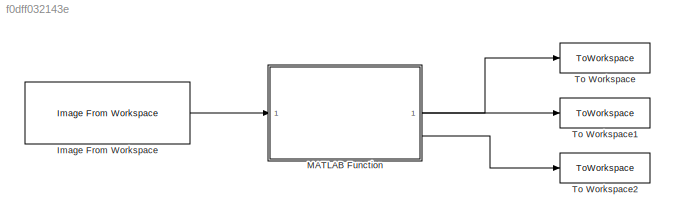
MODEL slx_f0dff032143e
KIND model
CONFIG AbsTol = auto
CONFIG EnableMultiTasking = off
CONFIG FixedStep = auto
CONFIG MaxStep = auto
CONFIG MinStep = auto
CONFIG RelTol = 1e-3
CONFIG SampleTimeConstraint = Unconstrained
CONFIG SolverName = FixedStepAuto
CONFIG StartTime = 0.0
CONFIG StopTime = 1
BLOCK [Reference] Image From Workspace  REF=visionsources/Image From Workspace
  SourceBlock = visionsources/Image From Workspace
  SourceType = Image From Workspace
  Tag = vipblks_nd
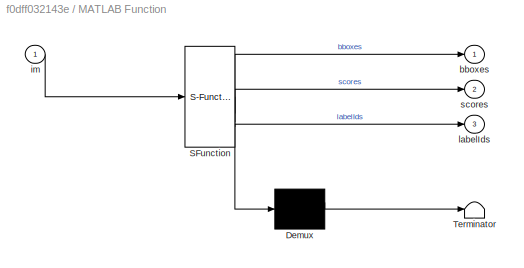
BLOCK [SubSystem] MATLAB Function
  ErrorFcn = Stateflow.Translate.translate
  PermitHierarchicalResolution = ExplicitOnly
  SFBlockType = MATLAB Function
  TreatAsAtomicUnit = on
BLOCK [Demux] MATLAB Function/ Demux 
  Outputs = 1
BLOCK [S-Function] MATLAB Function/ SFunction 
  EnableBusSupport = on
  FunctionName = sf_sfun
  PortCounts = [1 4]
  SFcnIsStateOwnerBlock = off
  SFunctionDeploymentMode = off
  Tag = Stateflow S-Function 2
BLOCK [Terminator] MATLAB Function/ Terminator 
BLOCK [Outport] MATLAB Function/bboxes
BLOCK [Inport] MATLAB Function/im
BLOCK [Outport] MATLAB Function/labelIds
  Port = 3
BLOCK [Outport] MATLAB Function/scores
  Port = 2
BLOCK [ToWorkspace] To Workspace
  FixptAsFi = on
  MaxDataPoints = inf
  SampleTime = 1
  SaveFormat = Structure
  VariableName = bboxes
BLOCK [ToWorkspace] To Workspace1
  FixptAsFi = on
  MaxDataPoints = inf
  SampleTime = 1
  SaveFormat = Structure
  VariableName = scores
BLOCK [ToWorkspace] To Workspace2
  FixptAsFi = on
  MaxDataPoints = inf
  SampleTime = 1
  SaveFormat = Structure
  VariableName = labelIds
LINE Image From Workspace:1 -> MATLAB Function:1
LINE MATLAB Function:1 -> To Workspace:1
LINE MATLAB Function:2 -> To Workspace1:1
LINE MATLAB Function:3 -> To Workspace2:1
CHART MATLAB Function states=1 transitions=1
  STATE_LABEL 'eML_blk_kernel()'
  STATE_LABEL "SCRIPT:\nfunction [bboxes,scores,labelIds]  = detectObjects(im)\n\n%codegen\ncoder.varsize('class_name',[1 100]);\npersistent det\n\nif isempty(det)\n    det = coder.loadDeepLearningNetwork('yolov8n.mat');\nend\n\n% origSize = size(im);\n% newSize = size(im);\n% \n% % Convert uint8 to single\n% I = single(im);\n% \n% % Rescale image pixes to [0,1]\n% Iout = I./255;\n\n% Get the input size of the network.\ninputSize = ...<+519ch>"
CHART  states=0 transitions=0
